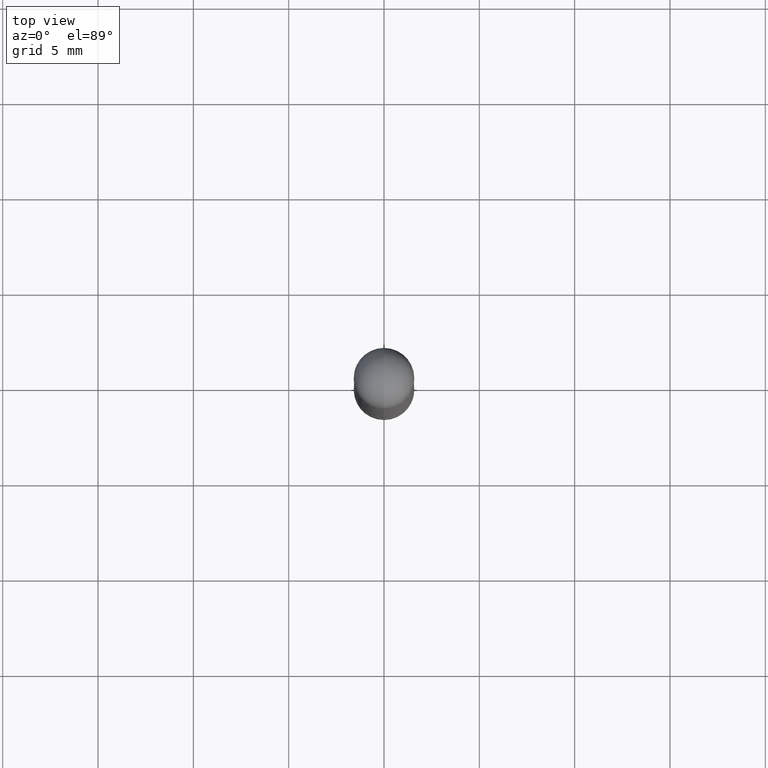
[diagram: clean part render]
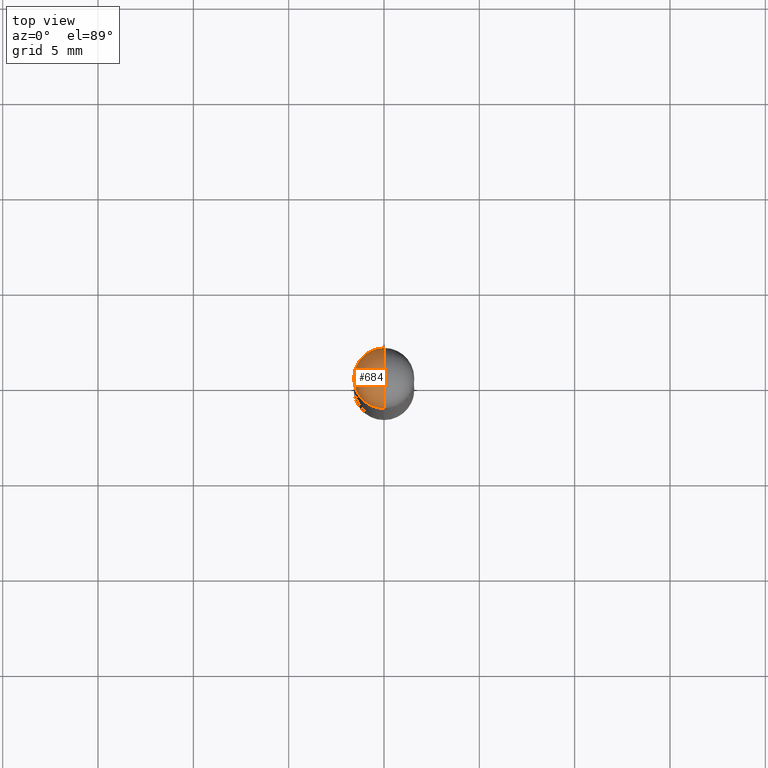
[diagram: same view with one face highlighted and labeled with its STEP entity id]
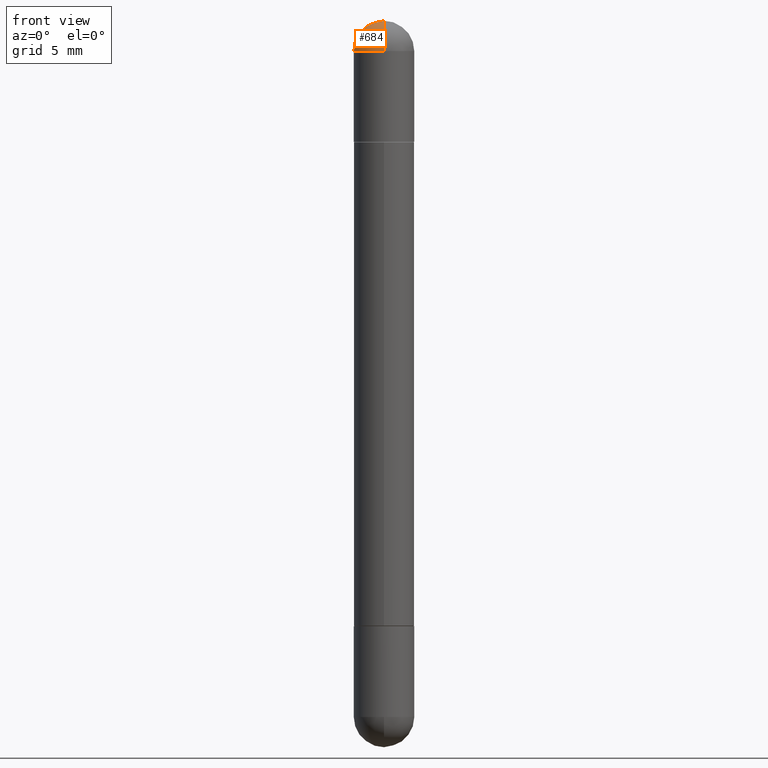
[diagram: same view with one face highlighted and labeled with its STEP entity id]
A machine part, top view. The second image highlights one B-rep face of the part: STEP entity #684.
A second angle (front view) of the same face is appended — the face is thin or edge-on in the first view.
In plain terms, the highlighted spherical surface has radius 1.5875 mm.
Its self-contained STEP definition (entity closure, byte-faithful):
#4 = AXIS2_PLACEMENT_3D ( 'NONE', #14, #764, #262 ) ;
#14 = CARTESIAN_POINT ( 'NONE',  ( 3.184241630977248732E-29, -5.493186792727072638E-15, -0.06250000000000022204 ) ) ;
#19 = CARTESIAN_POINT ( 'NONE',  ( 3.515361408891134418E-29, -5.019004424587023131E-15, -0.06250000000000022204 ) ) ;
#22 = ORIENTED_EDGE ( 'NONE', *, *, #445, .T. ) ;
#40 = CARTESIAN_POINT ( 'NONE',  ( 4.364351673554259849E-16, 0.06249999999999485828, -0.06250000000000000000 ) ) ;
#104 = FACE_OUTER_BOUND ( 'NONE', #624, .T. ) ;
#108 = SPHERICAL_SURFACE ( 'NONE', #199, 0.06250000000000022204 ) ;
#148 = DIRECTION ( 'NONE',  ( 1.000000000000000000, -6.860497997771530774E-15, -4.840798879624142912E-29 ) ) ;
#151 = CARTESIAN_POINT ( 'NONE',  ( 3.184241630977248732E-29, -5.493186792727072638E-15, -0.06250000000000022204 ) ) ;
#186 = CIRCLE ( 'NONE', #637, 0.06250000000000001388 ) ;
#195 = DIRECTION ( 'NONE',  ( 1.000000000000000000, -6.982962677686261189E-15, 0.000000000000000000 ) ) ;
#199 = AXIS2_PLACEMENT_3D ( 'NONE', #151, #540, #661 ) ;
#212 = CIRCLE ( 'NONE', #4, 0.06250000000000022204 ) ;
#262 = DIRECTION ( 'NONE',  ( -6.982962677686266711E-15, -1.000000000000000000, 0.000000000000000000 ) ) ;
#269 = DIRECTION ( 'NONE',  ( 2.445468806185136597E-29, -3.491481338843145583E-15, 1.000000000000000000 ) ) ;
#271 = VERTEX_POINT ( 'NONE', #743 ) ;
#281 = CIRCLE ( 'NONE', #547, 0.06250000000000022204 ) ;
#299 = VERTEX_POINT ( 'NONE', #630 ) ;
#346 = CARTESIAN_POINT ( 'NONE',  ( 3.515361408891134418E-29, -5.019004424587023131E-15, -0.06250000000000022204 ) ) ;
#364 = CARTESIAN_POINT ( 'NONE',  ( -0.06250000000000001388, -4.262896924209757473E-15, -0.06250000000000022204 ) ) ;
#365 = VERTEX_POINT ( 'NONE', #364 ) ;
#368 = ORIENTED_EDGE ( 'NONE', *, *, #660, .T. ) ;
#396 = DIRECTION ( 'NONE',  ( 6.860497997771530774E-15, 1.000000000000000000, 0.000000000000000000 ) ) ;
#445 = EDGE_CURVE ( 'NONE', #299, #564, #212, .T. ) ;
#450 = ORIENTED_EDGE ( 'NONE', *, *, #710, .F. ) ;
#472 = EDGE_CURVE ( 'NONE', #564, #365, #681, .T. ) ;
#540 = DIRECTION ( 'NONE',  ( 1.000000000000000000, -6.982962677686266711E-15, -4.883557194083112901E-29 ) ) ;
#547 = AXIS2_PLACEMENT_3D ( 'NONE', #717, #148, #396 ) ;
#564 = VERTEX_POINT ( 'NONE', #40 ) ;
#624 = EDGE_LOOP ( 'NONE', ( #450, #22, #748, #368 ) ) ;
#630 = CARTESIAN_POINT ( 'NONE',  ( 3.339755826017505569E-29, -5.707577355157435366E-15, 0.000000000000000000 ) ) ;
#637 = AXIS2_PLACEMENT_3D ( 'NONE', #346, #781, #671 ) ;
#660 = EDGE_CURVE ( 'NONE', #365, #271, #186, .T. ) ;
#661 = DIRECTION ( 'NONE',  ( 6.982962677686266711E-15, 1.000000000000000000, 3.551402391763529759E-15 ) ) ;
#671 = DIRECTION ( 'NONE',  ( 1.000000000000000000, -6.982962677686261189E-15, 0.000000000000000000 ) ) ;
#681 = CIRCLE ( 'NONE', #720, 0.06250000000000001388 ) ;
#684 = ADVANCED_FACE ( 'NONE', ( #104 ), #108, .T. ) ;
#710 = EDGE_CURVE ( 'NONE', #299, #271, #281, .T. ) ;
#717 = CARTESIAN_POINT ( 'NONE',  ( 3.184241630977248732E-29, -5.493186792727072638E-15, -0.06250000000000022204 ) ) ;
#720 = AXIS2_PLACEMENT_3D ( 'NONE', #19, #269, #195 ) ;
#743 = CARTESIAN_POINT ( 'NONE',  ( -4.287811248606879849E-16, -0.06250000000000537070, -0.06250000000000044409 ) ) ;
#748 = ORIENTED_EDGE ( 'NONE', *, *, #472, .T. ) ;
#764 = DIRECTION ( 'NONE',  ( -1.000000000000000000, 6.982962677686265922E-15, 4.883557194083112340E-29 ) ) ;
#781 = DIRECTION ( 'NONE',  ( 2.445468806185136597E-29, -3.491481338843145583E-15, 1.000000000000000000 ) ) ;